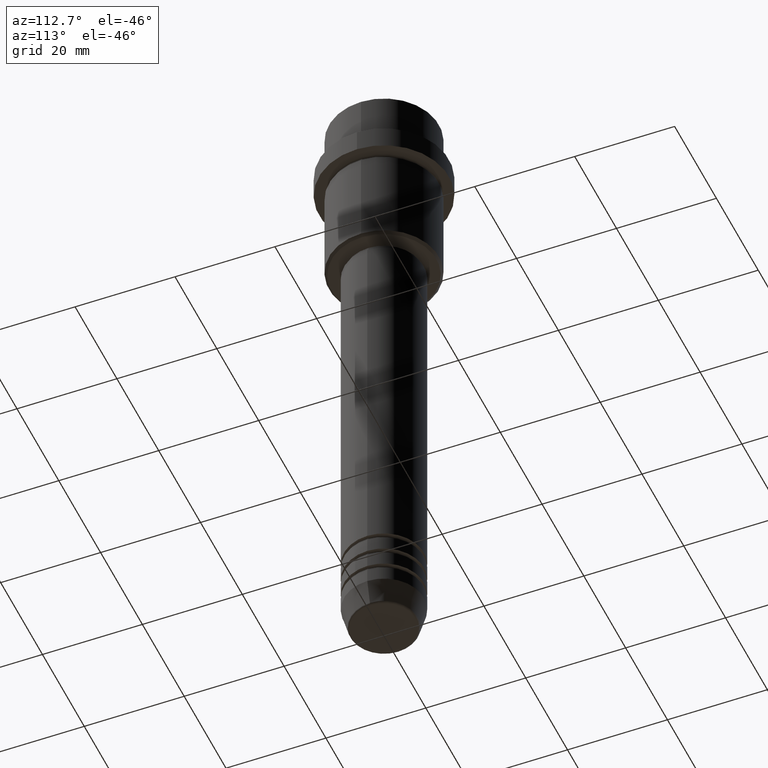
[diagram: clean part render]
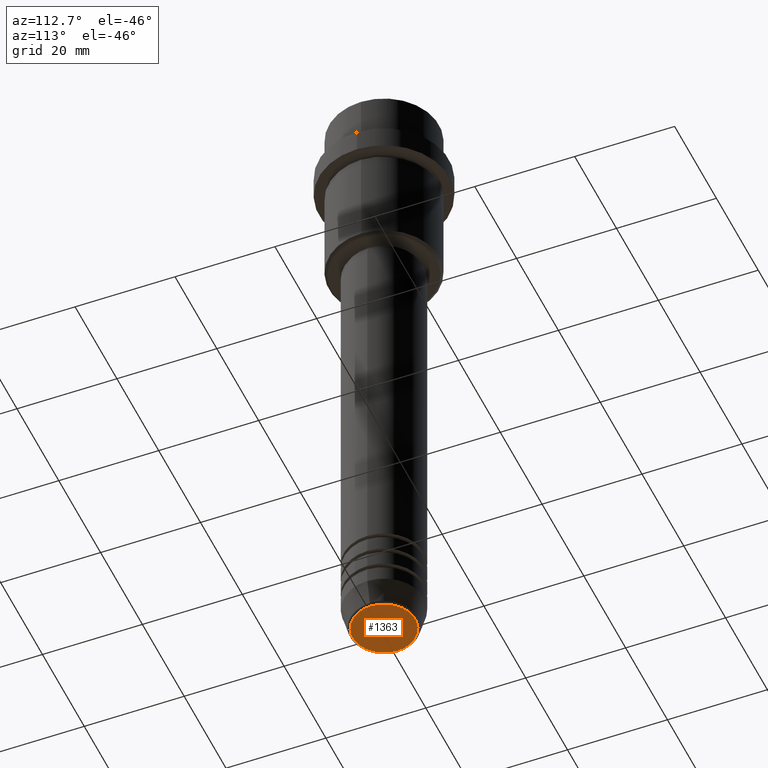
[diagram: same view with one face highlighted and labeled with its STEP entity id]
A machine part, auxiliary view. The second image highlights one B-rep face of the part: STEP entity #1363.
In plain terms, the highlighted planar face has unit normal (0, -0, 1).
Its self-contained STEP definition (entity closure, byte-faithful):
#27 = VERTEX_POINT ( 'NONE', #1395 ) ;
#196 = ORIENTED_EDGE ( 'NONE', *, *, #1173, .T. ) ;
#321 = EDGE_LOOP ( 'NONE', ( #985, #196 ) ) ;
#342 = CIRCLE ( 'NONE', #1095, 6.276590543854900339 ) ;
#402 = DIRECTION ( 'NONE',  ( 0.000000000000000000, 0.000000000000000000, -1.000000000000000000 ) ) ;
#408 = CARTESIAN_POINT ( 'NONE',  ( 0.000000000000000000, 0.000000000000000000, -130.0000000000000000 ) ) ;
#439 = PLANE ( 'NONE',  #1230 ) ;
#508 = CIRCLE ( 'NONE', #697, 6.276590543854900339 ) ;
#612 = CARTESIAN_POINT ( 'NONE',  ( 0.000000000000000000, 0.000000000000000000, -130.0000000000000000 ) ) ;
#697 = AXIS2_PLACEMENT_3D ( 'NONE', #826, #402, #940 ) ;
#826 = CARTESIAN_POINT ( 'NONE',  ( 0.000000000000000000, 0.000000000000000000, -130.0000000000000000 ) ) ;
#900 = CARTESIAN_POINT ( 'NONE',  ( -6.276590543854900339, 7.982336011935118383E-16, -130.0000000000000000 ) ) ;
#940 = DIRECTION ( 'NONE',  ( 1.000000000000000000, 0.000000000000000000, 0.000000000000000000 ) ) ;
#966 = VERTEX_POINT ( 'NONE', #900 ) ;
#985 = ORIENTED_EDGE ( 'NONE', *, *, #1235, .T. ) ;
#1036 = DIRECTION ( 'NONE',  ( 0.000000000000000000, 0.000000000000000000, -1.000000000000000000 ) ) ;
#1095 = AXIS2_PLACEMENT_3D ( 'NONE', #612, #1036, #1370 ) ;
#1173 = EDGE_CURVE ( 'NONE', #966, #27, #342, .T. ) ;
#1207 = DIRECTION ( 'NONE',  ( 0.000000000000000000, -0.000000000000000000, 1.000000000000000000 ) ) ;
#1230 = AXIS2_PLACEMENT_3D ( 'NONE', #408, #1207, #1311 ) ;
#1235 = EDGE_CURVE ( 'NONE', #27, #966, #508, .T. ) ;
#1311 = DIRECTION ( 'NONE',  ( 1.000000000000000000, 0.000000000000000000, 0.000000000000000000 ) ) ;
#1363 = ADVANCED_FACE ( 'NONE', ( #1416 ), #439, .F. ) ;
#1370 = DIRECTION ( 'NONE',  ( 1.000000000000000000, 0.000000000000000000, 0.000000000000000000 ) ) ;
#1395 = CARTESIAN_POINT ( 'NONE',  ( 6.276590543854900339, 0.000000000000000000, -130.0000000000000000 ) ) ;
#1416 = FACE_OUTER_BOUND ( 'NONE', #321, .T. ) ;